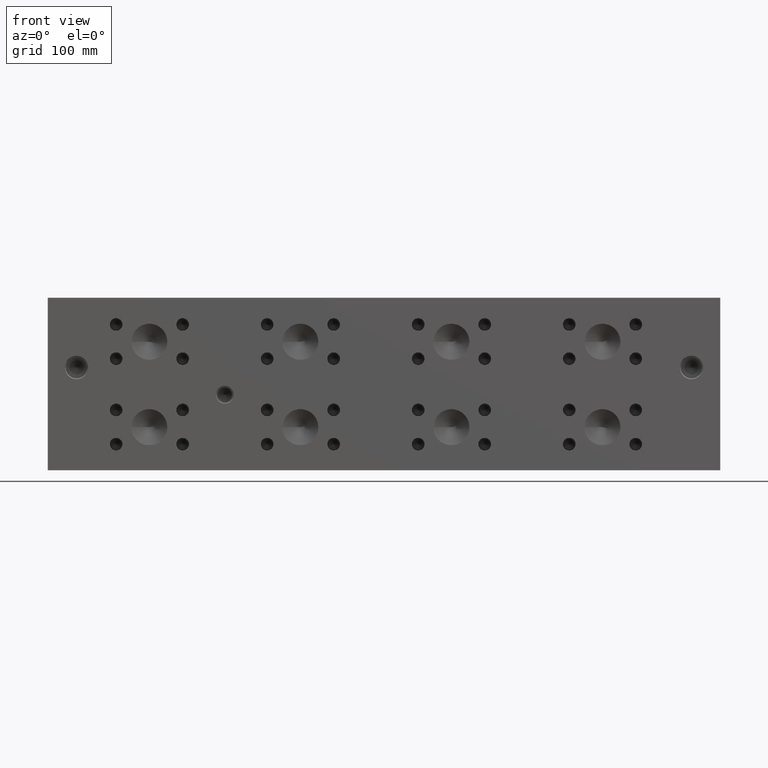
[diagram: clean part render]
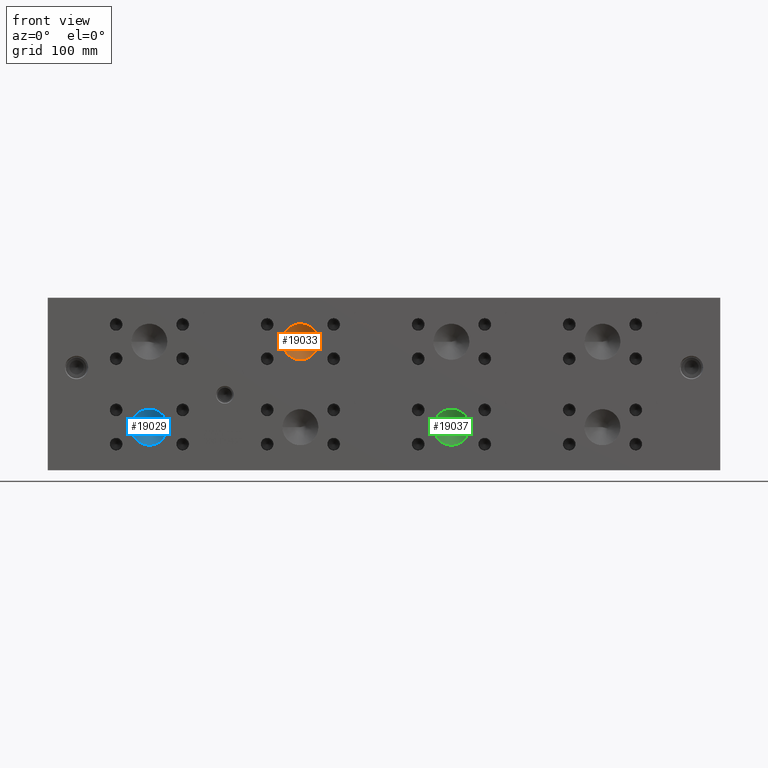
[diagram: same view with three faces highlighted in distinct colors, each labeled with its STEP entity id]
A machine part, front view with three faces highlighted in distinct colors.
Their STEP definitions:

[orange] entity #19033 — the highlighted conical surface has half-angle 60 deg.
#293=CONICAL_SURFACE('',#20343,7.9375,1.0471975511966);
#976=CIRCLE('',#20344,15.875);
#977=CIRCLE('',#20345,15.875);
#2700=FACE_OUTER_BOUND('',#3886,.T.);
#3886=EDGE_LOOP('',(#16255,#16256,#16257,#16258));
#5563=LINE('',#32495,#7132);
#7132=VECTOR('',#24494,7.9375);
#8838=VERTEX_POINT('',#32491);
#8839=VERTEX_POINT('',#32492);
#8840=VERTEX_POINT('',#32494);
#11410=EDGE_CURVE('',#8838,#8839,#976,.T.);
#11411=EDGE_CURVE('',#8839,#8840,#5563,.T.);
#11412=EDGE_CURVE('',#8839,#8838,#977,.T.);
#16255=ORIENTED_EDGE('',*,*,#11410,.T.);
#16256=ORIENTED_EDGE('',*,*,#11411,.T.);
#16257=ORIENTED_EDGE('',*,*,#11411,.F.);
#16258=ORIENTED_EDGE('',*,*,#11412,.T.);
#19033=ADVANCED_FACE('',(#2700),#293,.F.);
#20343=AXIS2_PLACEMENT_3D('',#32490,#24490,#24491);
#20344=AXIS2_PLACEMENT_3D('',#32493,#24492,#24493);
#20345=AXIS2_PLACEMENT_3D('',#32496,#24495,#24496);
#24490=DIRECTION('center_axis',(0.,-1.,0.));
#24491=DIRECTION('ref_axis',(1.,0.,0.));
#24492=DIRECTION('center_axis',(0.,-1.,0.));
#24493=DIRECTION('ref_axis',(1.,0.,0.));
#24494=DIRECTION('',(0.866025403784439,0.5,1.06057523872491E-16));
#24495=DIRECTION('center_axis',(0.,-1.,0.));
#24496=DIRECTION('ref_axis',(1.,0.,0.));
#32490=CARTESIAN_POINT('Origin',(223.0374,13.7481577616927,113.5126));
#32491=CARTESIAN_POINT('',(238.9124,9.16544,113.5126));
#32492=CARTESIAN_POINT('',(207.1624,9.16544,113.5126));
#32493=CARTESIAN_POINT('Origin',(223.0374,9.16544,113.5126));
#32494=CARTESIAN_POINT('',(223.0374,18.3308755233853,113.5126));
#32495=CARTESIAN_POINT('',(215.0999,13.7481577616927,113.5126));
#32496=CARTESIAN_POINT('Origin',(223.0374,9.16544,113.5126));

[blue] entity #19029 — the highlighted conical surface has half-angle 60 deg.
#291=CONICAL_SURFACE('',#20335,7.9375,1.0471975511966);
#972=CIRCLE('',#20336,15.875);
#973=CIRCLE('',#20337,15.875);
#2696=FACE_OUTER_BOUND('',#3882,.T.);
#3882=EDGE_LOOP('',(#16235,#16236,#16237,#16238));
#5559=LINE('',#32477,#7128);
#7128=VECTOR('',#24474,7.9375);
#8832=VERTEX_POINT('',#32473);
#8833=VERTEX_POINT('',#32474);
#8834=VERTEX_POINT('',#32476);
#11402=EDGE_CURVE('',#8832,#8833,#972,.T.);
#11403=EDGE_CURVE('',#8833,#8834,#5559,.T.);
#11404=EDGE_CURVE('',#8833,#8832,#973,.T.);
#16235=ORIENTED_EDGE('',*,*,#11402,.T.);
#16236=ORIENTED_EDGE('',*,*,#11403,.T.);
#16237=ORIENTED_EDGE('',*,*,#11403,.F.);
#16238=ORIENTED_EDGE('',*,*,#11404,.T.);
#19029=ADVANCED_FACE('',(#2696),#291,.F.);
#20335=AXIS2_PLACEMENT_3D('',#32472,#24470,#24471);
#20336=AXIS2_PLACEMENT_3D('',#32475,#24472,#24473);
#20337=AXIS2_PLACEMENT_3D('',#32478,#24475,#24476);
#24470=DIRECTION('center_axis',(0.,-1.,0.));
#24471=DIRECTION('ref_axis',(1.,0.,0.));
#24472=DIRECTION('center_axis',(0.,-1.,0.));
#24473=DIRECTION('ref_axis',(1.,0.,0.));
#24474=DIRECTION('',(0.866025403784439,0.5,1.06057523872491E-16));
#24475=DIRECTION('center_axis',(0.,-1.,0.));
#24476=DIRECTION('ref_axis',(1.,0.,0.));
#32472=CARTESIAN_POINT('Origin',(89.6874,13.7481577616927,38.1));
#32473=CARTESIAN_POINT('',(105.5624,9.16544,38.1));
#32474=CARTESIAN_POINT('',(73.8124,9.16544,38.1));
#32475=CARTESIAN_POINT('Origin',(89.6874,9.16544,38.1));
#32476=CARTESIAN_POINT('',(89.6874,18.3308755233853,38.1));
#32477=CARTESIAN_POINT('',(81.7499,13.7481577616927,38.1));
#32478=CARTESIAN_POINT('Origin',(89.6874,9.16544,38.1));

[green] entity #19037 — the highlighted conical surface has half-angle 60 deg.
#295=CONICAL_SURFACE('',#20351,7.9375,1.0471975511966);
#980=CIRCLE('',#20352,15.875);
#981=CIRCLE('',#20353,15.875);
#2704=FACE_OUTER_BOUND('',#3890,.T.);
#3890=EDGE_LOOP('',(#16275,#16276,#16277,#16278));
#5567=LINE('',#32513,#7136);
#7136=VECTOR('',#24514,7.9375);
#8844=VERTEX_POINT('',#32509);
#8845=VERTEX_POINT('',#32510);
#8846=VERTEX_POINT('',#32512);
#11418=EDGE_CURVE('',#8844,#8845,#980,.T.);
#11419=EDGE_CURVE('',#8845,#8846,#5567,.T.);
#11420=EDGE_CURVE('',#8845,#8844,#981,.T.);
#16275=ORIENTED_EDGE('',*,*,#11418,.T.);
#16276=ORIENTED_EDGE('',*,*,#11419,.T.);
#16277=ORIENTED_EDGE('',*,*,#11419,.F.);
#16278=ORIENTED_EDGE('',*,*,#11420,.T.);
#19037=ADVANCED_FACE('',(#2704),#295,.F.);
#20351=AXIS2_PLACEMENT_3D('',#32508,#24510,#24511);
#20352=AXIS2_PLACEMENT_3D('',#32511,#24512,#24513);
#20353=AXIS2_PLACEMENT_3D('',#32514,#24515,#24516);
#24510=DIRECTION('center_axis',(0.,-1.,0.));
#24511=DIRECTION('ref_axis',(1.,0.,0.));
#24512=DIRECTION('center_axis',(0.,-1.,0.));
#24513=DIRECTION('ref_axis',(1.,0.,0.));
#24514=DIRECTION('',(0.866025403784439,0.5,1.06057523872491E-16));
#24515=DIRECTION('center_axis',(0.,-1.,0.));
#24516=DIRECTION('ref_axis',(1.,0.,0.));
#32508=CARTESIAN_POINT('Origin',(356.3874,13.7481577616927,38.1));
#32509=CARTESIAN_POINT('',(372.2624,9.16544,38.1));
#32510=CARTESIAN_POINT('',(340.5124,9.16544,38.1));
#32511=CARTESIAN_POINT('Origin',(356.3874,9.16544,38.1));
#32512=CARTESIAN_POINT('',(356.3874,18.3308755233853,38.1));
#32513=CARTESIAN_POINT('',(348.4499,13.7481577616927,38.1));
#32514=CARTESIAN_POINT('Origin',(356.3874,9.16544,38.1));